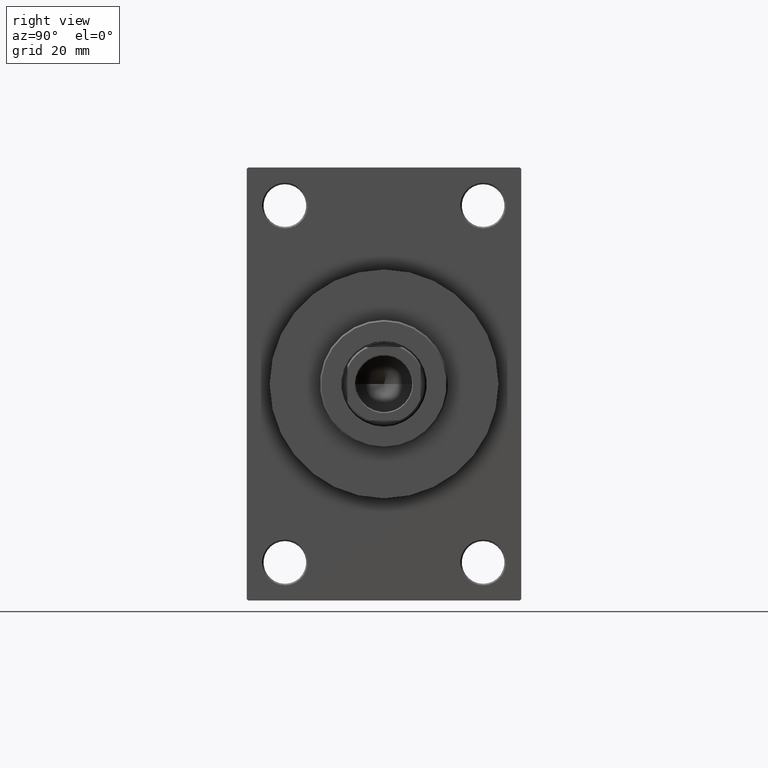
[diagram: clean part render]
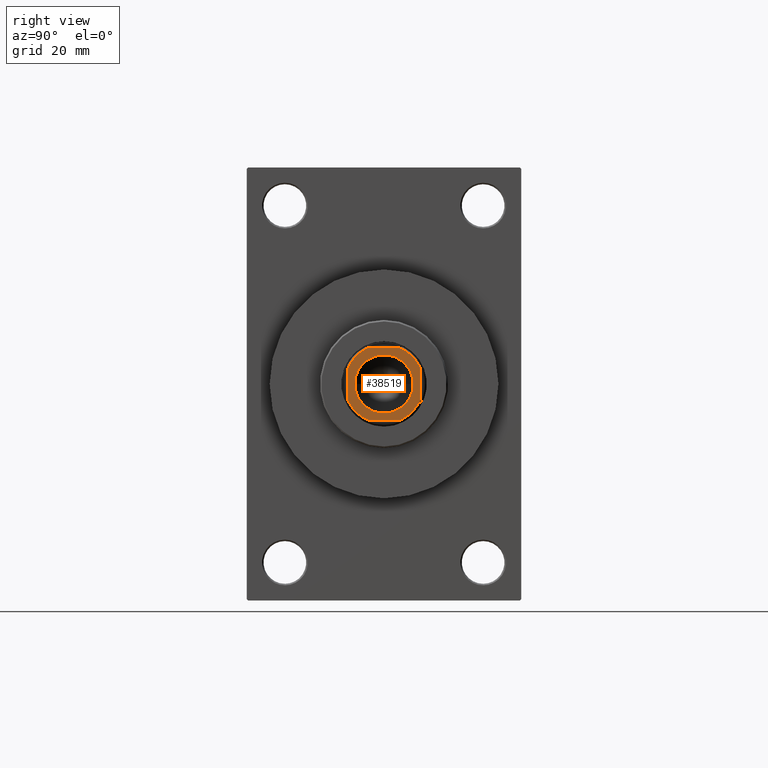
[diagram: same view with one face highlighted and labeled with its STEP entity id]
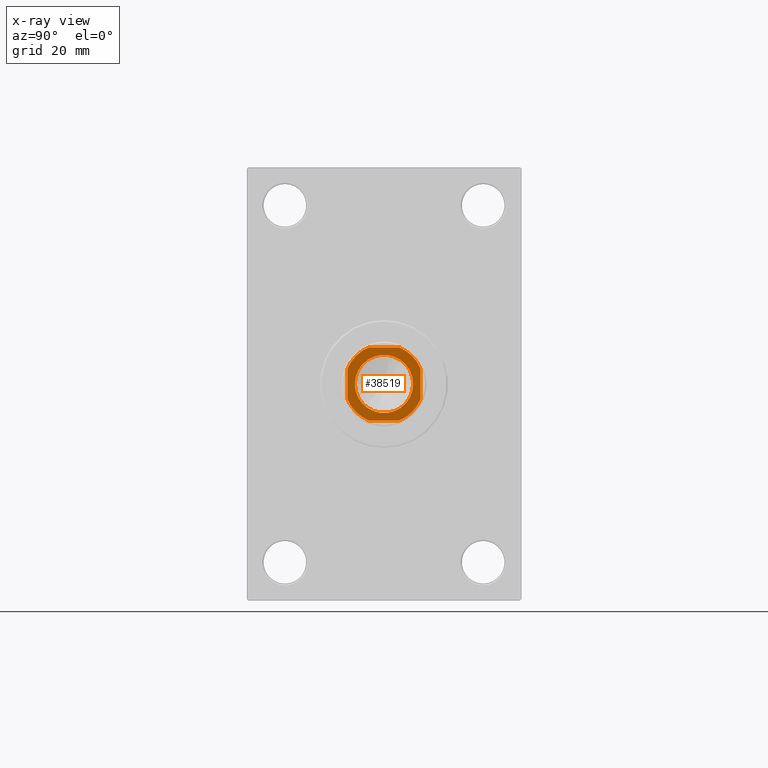
[diagram: x-ray of the same camera — body ghosted, the highlighted face saturated]
A machine part, right view. The second image highlights one B-rep face of the part: STEP entity #38519.
The next image is the same camera in x-ray: the body ghosted, the highlighted face saturated — about 0% of this face is hidden behind the body in this view.
In plain terms, the highlighted planar face has unit normal (1, 0, 0).
Its self-contained STEP definition (entity closure, byte-faithful):
#1403 = CARTESIAN_POINT ( 'NONE',  ( 11.99999999999999822, 4.999999999999980460, 112.9999999999999858 ) ) ;
#2341 = EDGE_LOOP ( 'NONE', ( #22081, #19877 ) ) ;
#2660 = AXIS2_PLACEMENT_3D ( 'NONE', #32393, #39570, #14243 ) ;
#2664 = VECTOR ( 'NONE', #6198, 1000.000000000000000 ) ;
#3011 = AXIS2_PLACEMENT_3D ( 'NONE', #6861, #10665, #25232 ) ;
#3082 = VERTEX_POINT ( 'NONE', #19745 ) ;
#3083 = VERTEX_POINT ( 'NONE', #30489 ) ;
#3464 = DIRECTION ( 'NONE',  ( 1.000000000000000000, 0.000000000000000000, 0.000000000000000000 ) ) ;
#3708 = CARTESIAN_POINT ( 'NONE',  ( -9.550000000000002487, 1.169537693185722558E-15, 112.9999999999999858 ) ) ;
#3761 = CIRCLE ( 'NONE', #3011, 12.99999999999999289 ) ;
#4240 = VERTEX_POINT ( 'NONE', #3708 ) ;
#6198 = DIRECTION ( 'NONE',  ( 7.228014483236695816E-17, -1.000000000000000000, 0.000000000000000000 ) ) ;
#6239 = VERTEX_POINT ( 'NONE', #38148 ) ;
#6598 = ORIENTED_EDGE ( 'NONE', *, *, #9145, .T. ) ;
#6861 = CARTESIAN_POINT ( 'NONE',  ( 0.000000000000000000, 0.000000000000000000, 112.9999999999999858 ) ) ;
#7060 = DIRECTION ( 'NONE',  ( -0.000000000000000000, 0.000000000000000000, 1.000000000000000000 ) ) ;
#8200 = CARTESIAN_POINT ( 'NONE',  ( -12.00000000000000000, 5.000000000000031086, 112.9999999999999858 ) ) ;
#8678 = FACE_OUTER_BOUND ( 'NONE', #26573, .T. ) ;
#9145 = EDGE_CURVE ( 'NONE', #34735, #6239, #45341, .T. ) ;
#9729 = EDGE_CURVE ( 'NONE', #40162, #4240, #42912, .T. ) ;
#10319 = CARTESIAN_POINT ( 'NONE',  ( -4.999999999999971578, -12.00000000000000355, 112.9999999999999858 ) ) ;
#10665 = DIRECTION ( 'NONE',  ( -0.000000000000000000, 0.000000000000000000, 1.000000000000000000 ) ) ;
#11711 = EDGE_CURVE ( 'NONE', #33416, #38520, #16279, .T. ) ;
#11725 = EDGE_CURVE ( 'NONE', #6239, #3083, #29985, .T. ) ;
#12018 = CARTESIAN_POINT ( 'NONE',  ( 0.000000000000000000, 0.000000000000000000, 112.9999999999999858 ) ) ;
#12500 = DIRECTION ( 'NONE',  ( -0.000000000000000000, 0.000000000000000000, 1.000000000000000000 ) ) ;
#12898 = VERTEX_POINT ( 'NONE', #39258 ) ;
#13520 = CARTESIAN_POINT ( 'NONE',  ( 0.000000000000000000, 0.000000000000000000, 112.9999999999999858 ) ) ;
#14243 = DIRECTION ( 'NONE',  ( 1.000000000000000000, 0.000000000000000000, 0.000000000000000000 ) ) ;
#14374 = CARTESIAN_POINT ( 'NONE',  ( 0.000000000000000000, 0.000000000000000000, 112.9999999999999858 ) ) ;
#14513 = EDGE_CURVE ( 'NONE', #25844, #3082, #26287, .T. ) ;
#14831 = AXIS2_PLACEMENT_3D ( 'NONE', #14374, #28250, #25357 ) ;
#15978 = EDGE_CURVE ( 'NONE', #38520, #12898, #28844, .T. ) ;
#15997 = EDGE_CURVE ( 'NONE', #3083, #25844, #42942, .T. ) ;
#16084 = FACE_BOUND ( 'NONE', #2341, .T. ) ;
#16261 = EDGE_CURVE ( 'NONE', #3082, #33416, #38367, .T. ) ;
#16279 = CIRCLE ( 'NONE', #32289, 13.00000000000001066 ) ;
#17250 = ORIENTED_EDGE ( 'NONE', *, *, #29346, .T. ) ;
#19437 = EDGE_CURVE ( 'NONE', #4240, #40162, #28608, .T. ) ;
#19745 = CARTESIAN_POINT ( 'NONE',  ( 4.999999999999984013, 11.99999999999999645, 112.9999999999999858 ) ) ;
#19877 = ORIENTED_EDGE ( 'NONE', *, *, #19437, .T. ) ;
#20042 = AXIS2_PLACEMENT_3D ( 'NONE', #38455, #39393, #35352 ) ;
#20982 = DIRECTION ( 'NONE',  ( -2.891205793294678326E-16, 1.000000000000000000, -0.000000000000000000 ) ) ;
#21210 = CARTESIAN_POINT ( 'NONE',  ( 11.99999999999999645, 11.99999999999999645, 112.9999999999999858 ) ) ;
#21675 = CARTESIAN_POINT ( 'NONE',  ( -12.00000000000000000, 11.99999999999999645, 112.9999999999999858 ) ) ;
#22081 = ORIENTED_EDGE ( 'NONE', *, *, #9729, .T. ) ;
#23917 = AXIS2_PLACEMENT_3D ( 'NONE', #35488, #36179, #3464 ) ;
#25232 = DIRECTION ( 'NONE',  ( 1.000000000000000000, 0.000000000000000000, 0.000000000000000000 ) ) ;
#25357 = DIRECTION ( 'NONE',  ( 1.000000000000000000, 0.000000000000000000, 0.000000000000000000 ) ) ;
#25844 = VERTEX_POINT ( 'NONE', #1403 ) ;
#26287 = CIRCLE ( 'NONE', #14831, 12.99999999999999112 ) ;
#26573 = EDGE_LOOP ( 'NONE', ( #31133, #43430, #46575, #37224, #45829, #17250, #6598, #45586 ) ) ;
#28250 = DIRECTION ( 'NONE',  ( -0.000000000000000000, 0.000000000000000000, 1.000000000000000000 ) ) ;
#28608 = CIRCLE ( 'NONE', #2660, 9.550000000000002487 ) ;
#28844 = LINE ( 'NONE', #21675, #2664 ) ;
#29346 = EDGE_CURVE ( 'NONE', #12898, #34735, #3761, .T. ) ;
#29985 = CIRCLE ( 'NONE', #23917, 12.99999999999999289 ) ;
#30145 = VECTOR ( 'NONE', #37897, 1000.000000000000000 ) ;
#30163 = PLANE ( 'NONE',  #34865 ) ;
#30489 = CARTESIAN_POINT ( 'NONE',  ( 12.00000000000000178, -4.999999999999976907, 112.9999999999999858 ) ) ;
#31133 = ORIENTED_EDGE ( 'NONE', *, *, #15997, .T. ) ;
#31675 = DIRECTION ( 'NONE',  ( 1.000000000000000000, 0.000000000000000000, 0.000000000000000000 ) ) ;
#31810 = VECTOR ( 'NONE', #46268, 1000.000000000000000 ) ;
#32289 = AXIS2_PLACEMENT_3D ( 'NONE', #13520, #7060, #31675 ) ;
#32393 = CARTESIAN_POINT ( 'NONE',  ( 0.000000000000000000, 0.000000000000000000, 112.9999999999999858 ) ) ;
#33416 = VERTEX_POINT ( 'NONE', #45279 ) ;
#34735 = VERTEX_POINT ( 'NONE', #10319 ) ;
#34865 = AXIS2_PLACEMENT_3D ( 'NONE', #12018, #12500, #37572 ) ;
#35352 = DIRECTION ( 'NONE',  ( 1.000000000000000000, 0.000000000000000000, 0.000000000000000000 ) ) ;
#35488 = CARTESIAN_POINT ( 'NONE',  ( 0.000000000000000000, 0.000000000000000000, 112.9999999999999858 ) ) ;
#36179 = DIRECTION ( 'NONE',  ( -0.000000000000000000, 0.000000000000000000, 1.000000000000000000 ) ) ;
#37224 = ORIENTED_EDGE ( 'NONE', *, *, #11711, .T. ) ;
#37572 = DIRECTION ( 'NONE',  ( 1.000000000000000000, 0.000000000000000000, 0.000000000000000000 ) ) ;
#37897 = DIRECTION ( 'NONE',  ( -1.000000000000000000, -0.000000000000000000, -0.000000000000000000 ) ) ;
#38148 = CARTESIAN_POINT ( 'NONE',  ( 4.999999999999971578, -12.00000000000000355, 112.9999999999999858 ) ) ;
#38367 = LINE ( 'NONE', #41480, #30145 ) ;
#38455 = CARTESIAN_POINT ( 'NONE',  ( 0.000000000000000000, 0.000000000000000000, 112.9999999999999858 ) ) ;
#38519 = ADVANCED_FACE ( 'NONE', ( #16084, #8678 ), #30163, .T. ) ;
#38520 = VERTEX_POINT ( 'NONE', #8200 ) ;
#39258 = CARTESIAN_POINT ( 'NONE',  ( -12.00000000000000000, -4.999999999999980460, 112.9999999999999858 ) ) ;
#39393 = DIRECTION ( 'NONE',  ( 0.000000000000000000, -0.000000000000000000, -1.000000000000000000 ) ) ;
#39570 = DIRECTION ( 'NONE',  ( 0.000000000000000000, -0.000000000000000000, -1.000000000000000000 ) ) ;
#40162 = VERTEX_POINT ( 'NONE', #42372 ) ;
#41480 = CARTESIAN_POINT ( 'NONE',  ( -12.00000000000000000, 11.99999999999999645, 112.9999999999999858 ) ) ;
#42372 = CARTESIAN_POINT ( 'NONE',  ( 9.550000000000002487, 0.000000000000000000, 112.9999999999999858 ) ) ;
#42912 = CIRCLE ( 'NONE', #20042, 9.550000000000002487 ) ;
#42942 = LINE ( 'NONE', #21210, #45402 ) ;
#43430 = ORIENTED_EDGE ( 'NONE', *, *, #14513, .T. ) ;
#45279 = CARTESIAN_POINT ( 'NONE',  ( -5.000000000000039080, 11.99999999999999645, 112.9999999999999858 ) ) ;
#45341 = LINE ( 'NONE', #46043, #31810 ) ;
#45402 = VECTOR ( 'NONE', #20982, 1000.000000000000000 ) ;
#45586 = ORIENTED_EDGE ( 'NONE', *, *, #11725, .T. ) ;
#45829 = ORIENTED_EDGE ( 'NONE', *, *, #15978, .T. ) ;
#46043 = CARTESIAN_POINT ( 'NONE',  ( -11.99999999999999822, -12.00000000000000355, 112.9999999999999858 ) ) ;
#46268 = DIRECTION ( 'NONE',  ( 1.000000000000000000, 0.000000000000000000, 0.000000000000000000 ) ) ;
#46575 = ORIENTED_EDGE ( 'NONE', *, *, #16261, .T. ) ;